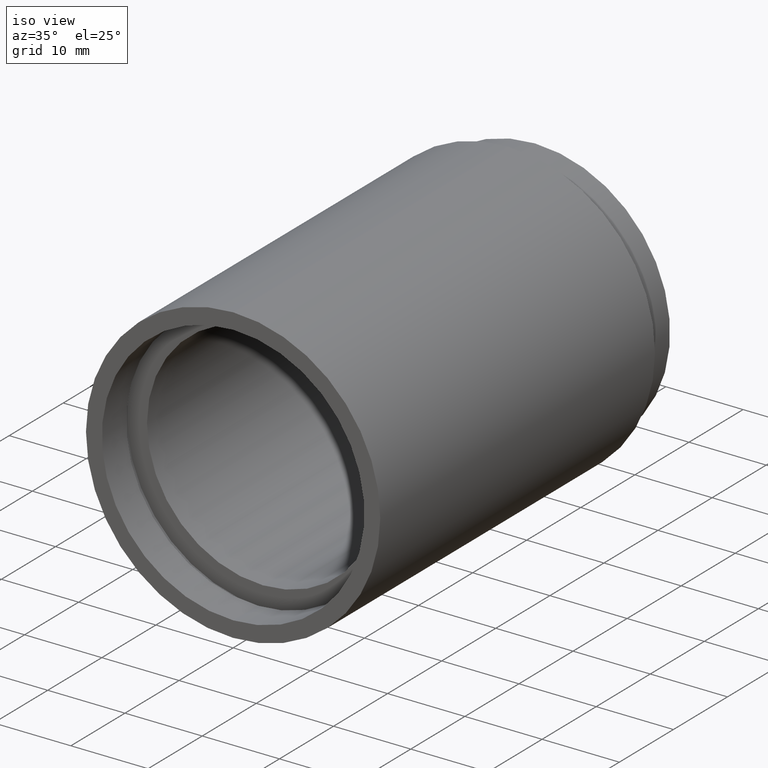
[diagram: clean part render]
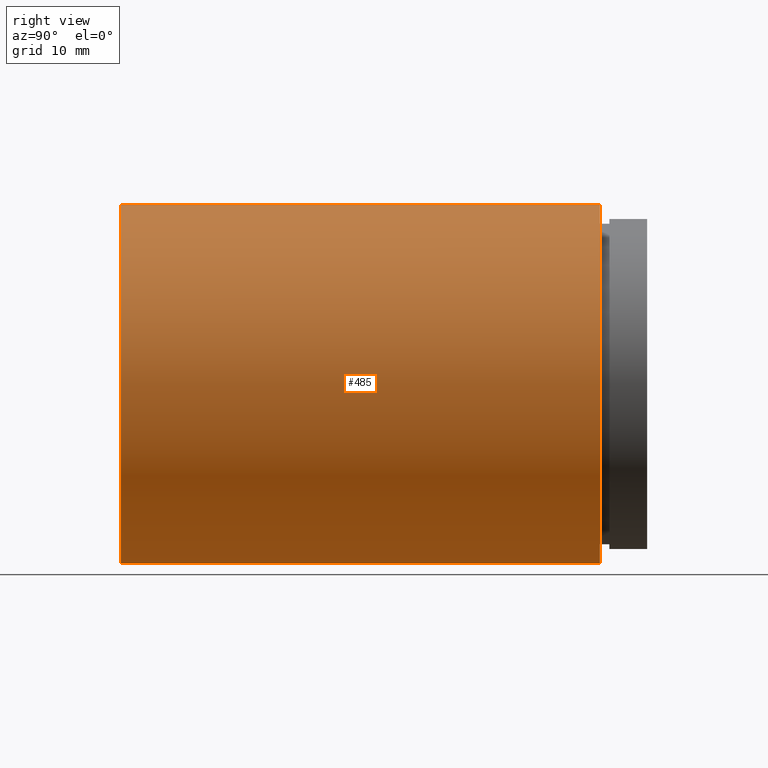
[diagram: tour spotlight — one face highlighted and labeled with its STEP entity id]
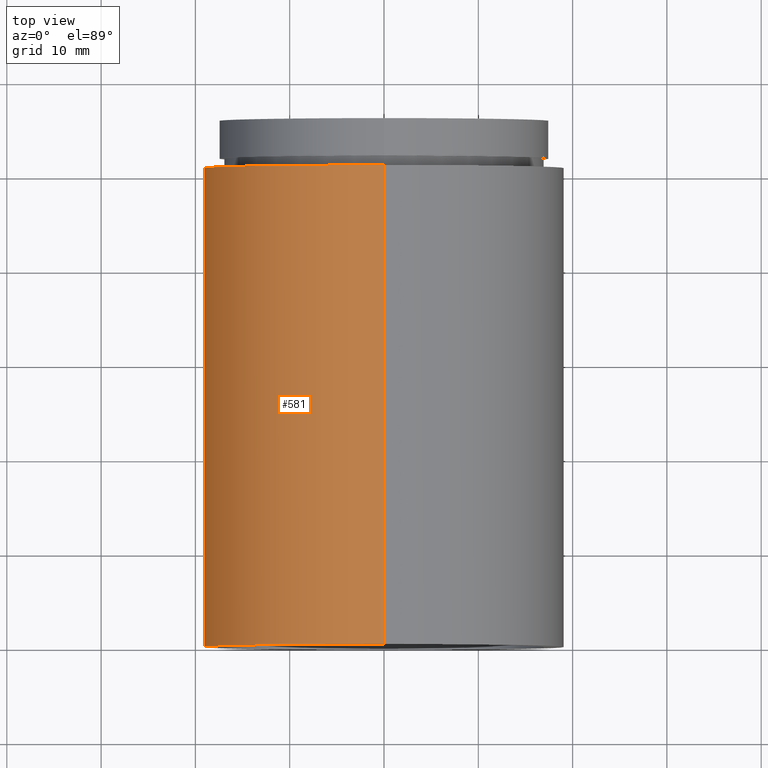
[diagram: tour spotlight — one face highlighted and labeled with its STEP entity id]
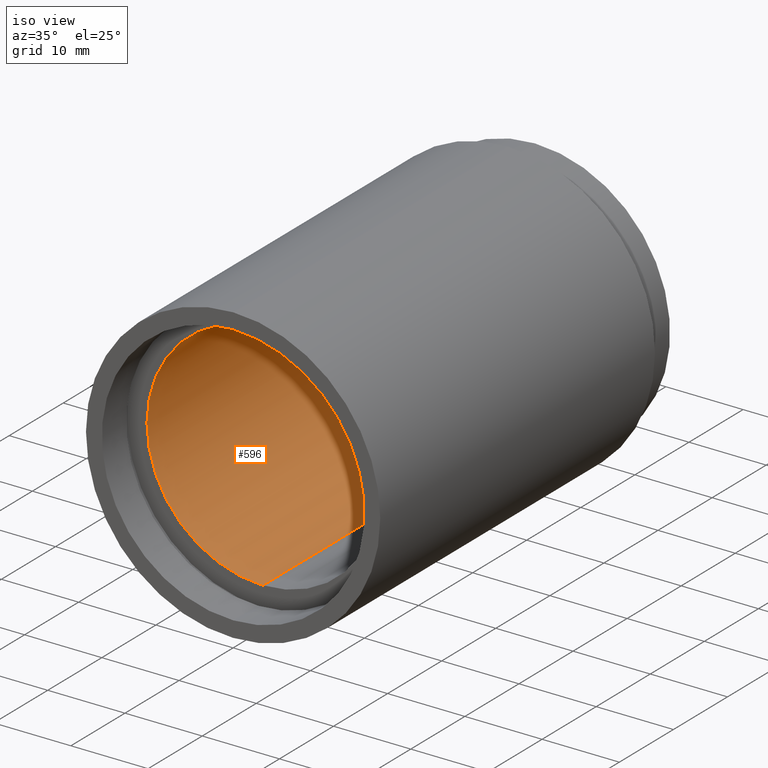
[diagram: tour spotlight — one face highlighted and labeled with its STEP entity id]
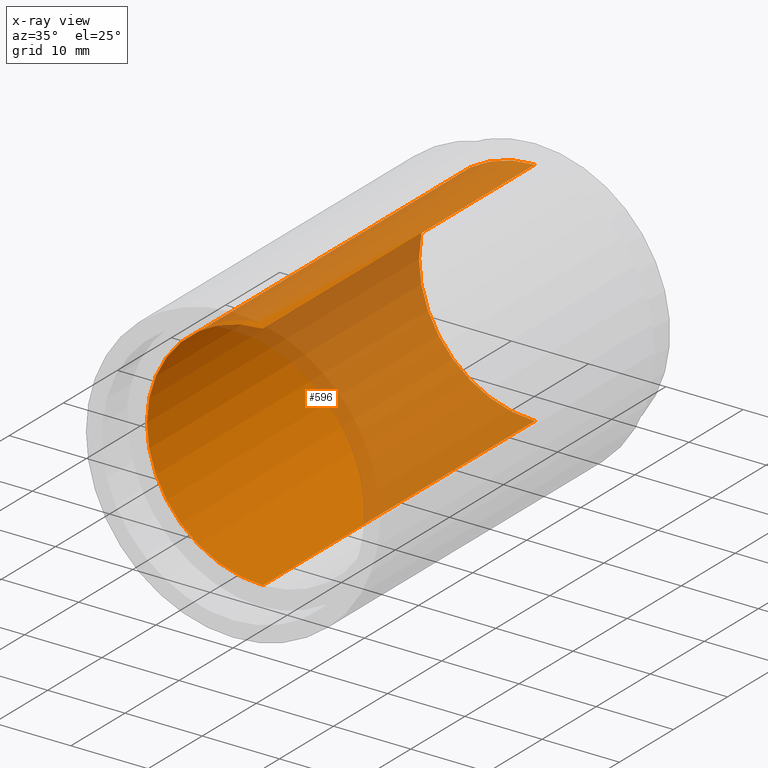
[diagram: x-ray of the same camera — body ghosted, this tour face saturated]
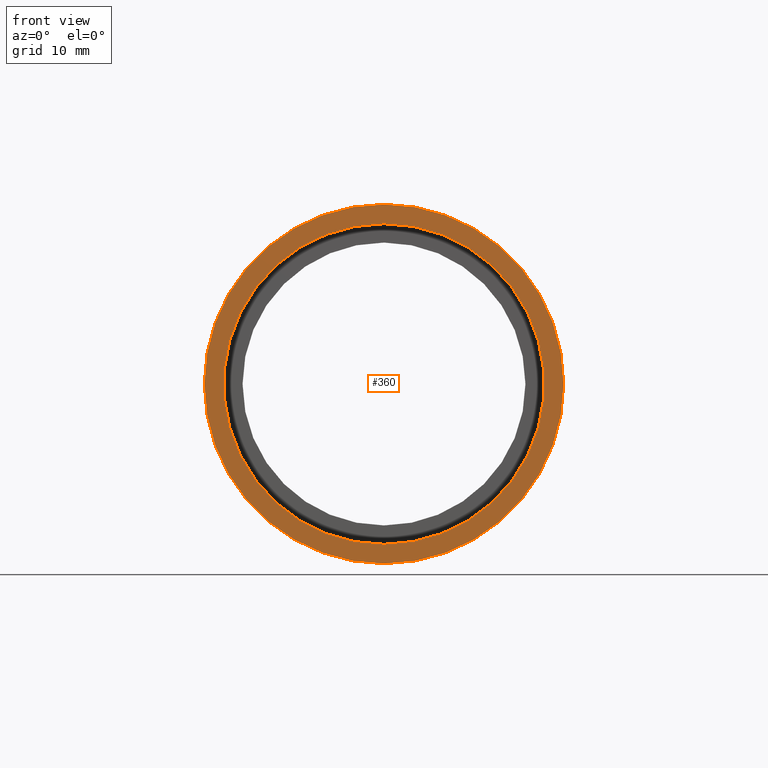
[diagram: tour spotlight — one face highlighted and labeled with its STEP entity id]
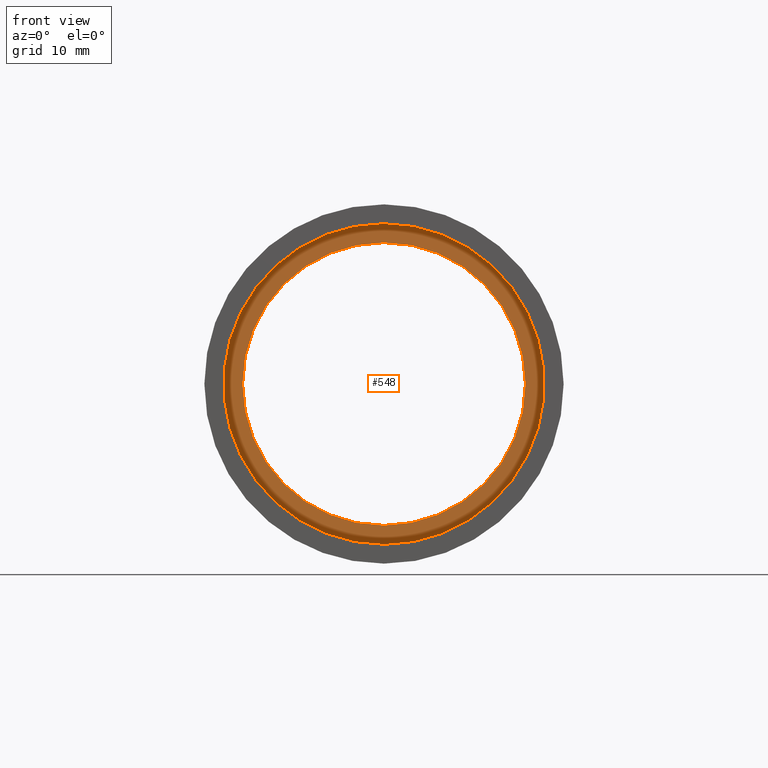
[diagram: tour spotlight — one face highlighted and labeled with its STEP entity id]
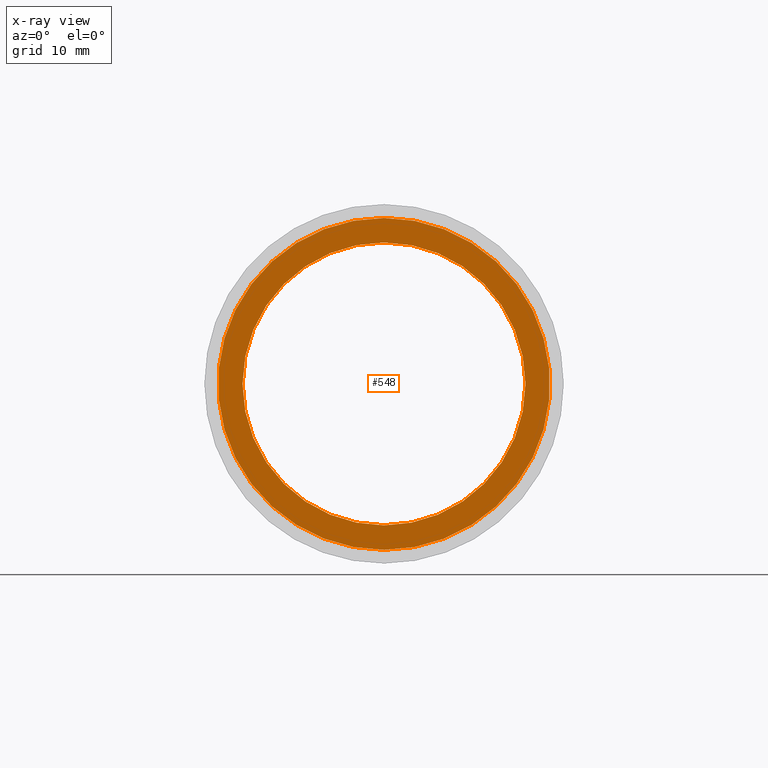
[diagram: x-ray of the same camera — body ghosted, this tour face saturated]
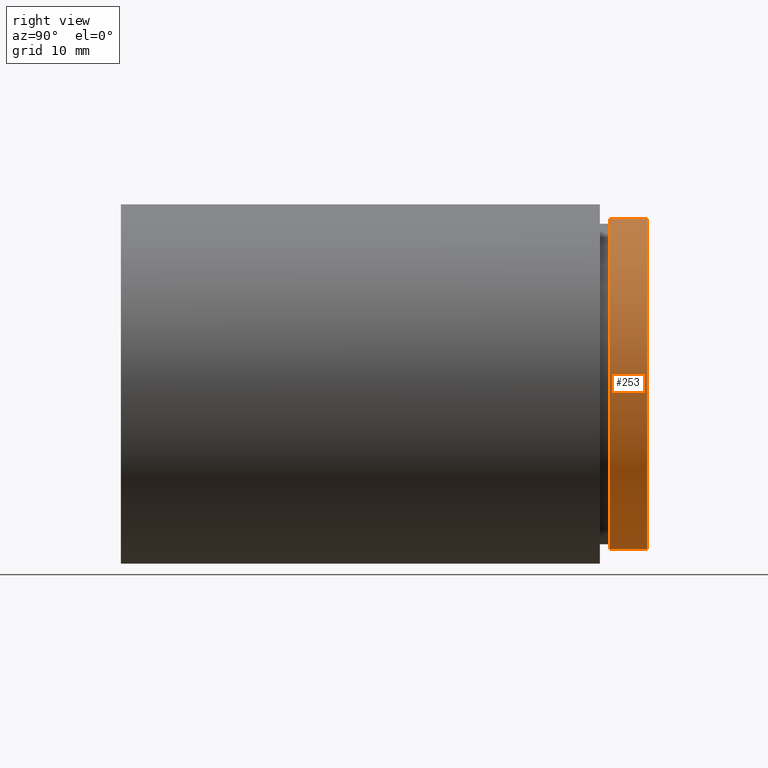
[diagram: tour spotlight — one face highlighted and labeled with its STEP entity id]
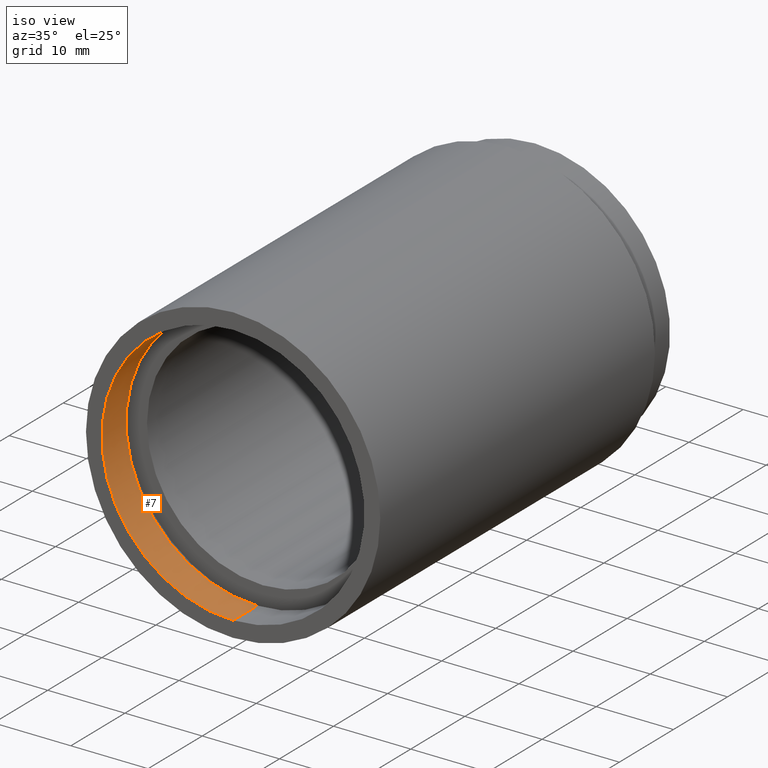
[diagram: tour spotlight — one face highlighted and labeled with its STEP entity id]
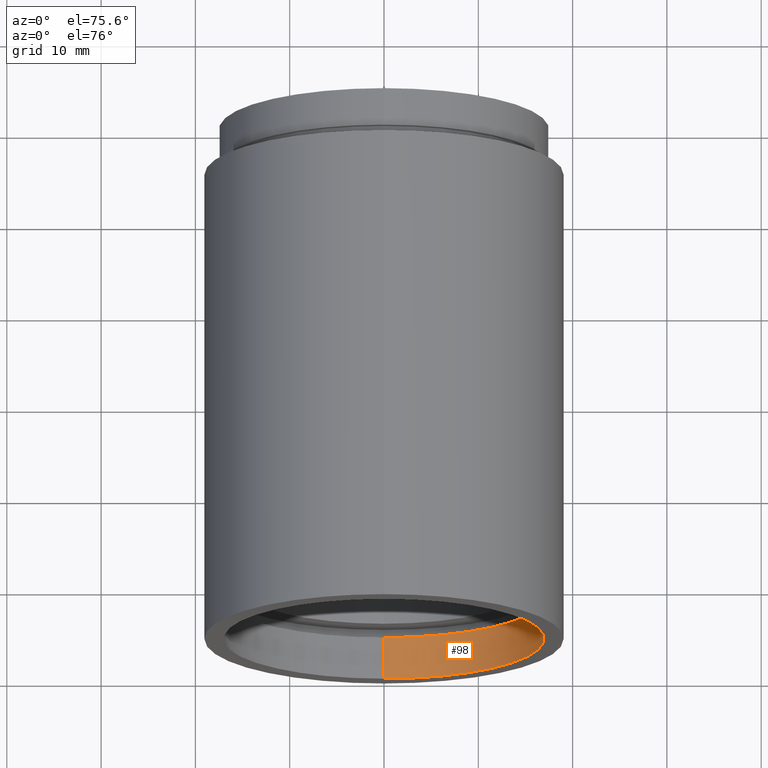
[diagram: tour spotlight — one face highlighted and labeled with its STEP entity id]
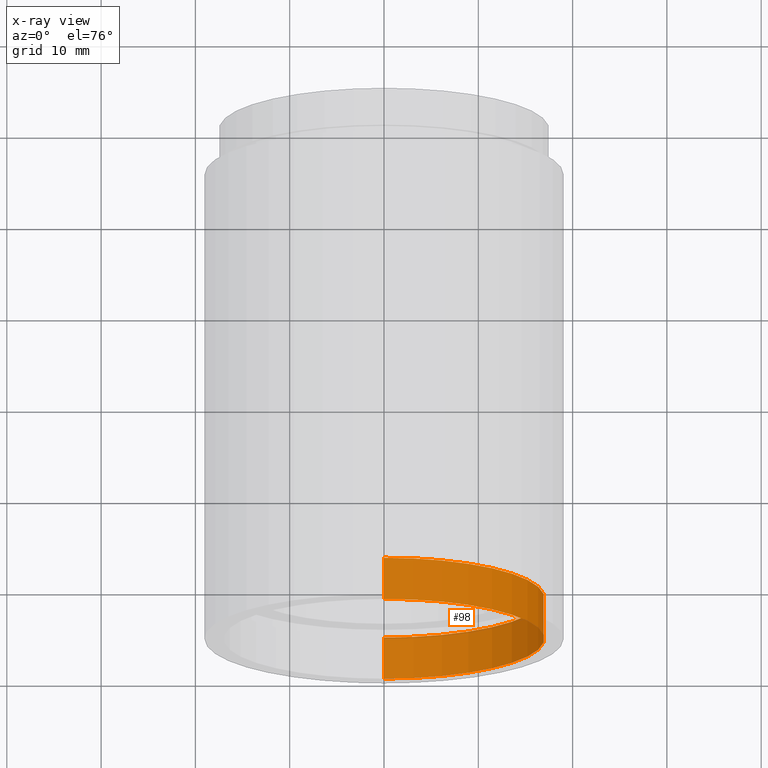
[diagram: x-ray of the same camera — body ghosted, this tour face saturated]
A machine part: a face-by-face anatomy tour. The part has 18 B-rep faces; the first image is the clean iso view, then the 8 largest visible faces are spotlighted one at a time (largest first), each with its STEP entity span.

Face 1 — right view, entity #485. In plain terms, the highlighted cylindrical surface (partial cylindrical patch) has radius 19.05 mm, axis along (-0, 1, -0).
Definition (entity closure, byte-faithful):
#34 = VERTEX_POINT ( 'NONE', #231 ) ;
#38 = CYLINDRICAL_SURFACE ( 'NONE', #260, 19.05000000000002200 ) ;
#39 = CIRCLE ( 'NONE', #413, 19.05000000000002200 ) ;
#50 = FACE_OUTER_BOUND ( 'NONE', #179, .T. ) ;
#66 = VERTEX_POINT ( 'NONE', #426 ) ;
#72 = EDGE_CURVE ( 'NONE', #34, #191, #39, .T. ) ;
#77 = DIRECTION ( 'NONE',  ( -0.0000000000000000000, 1.000000000000000000, -0.0000000000000000000 ) ) ;
#85 = LINE ( 'NONE', #549, #334 ) ;
#151 = DIRECTION ( 'NONE',  ( -0.0000000000000000000, 1.000000000000000000, -0.0000000000000000000 ) ) ;
#179 = EDGE_LOOP ( 'NONE', ( #284, #230, #452, #355 ) ) ;
#180 = AXIS2_PLACEMENT_3D ( 'NONE', #414, #369, #212 ) ;
#191 = VERTEX_POINT ( 'NONE', #593 ) ;
#212 = DIRECTION ( 'NONE',  ( 0.0000000000000000000, 0.0000000000000000000, 1.000000000000000000 ) ) ;
#230 = ORIENTED_EDGE ( 'NONE', *, *, #379, .T. ) ;
#231 = CARTESIAN_POINT ( 'NONE',  ( 0.0000000000000000000, 50.79999999999998300, 19.05000000000002200 ) ) ;
#232 = CARTESIAN_POINT ( 'NONE',  ( 0.0000000000000000000, -2.775557561562891400E-014, 19.05000000000002200 ) ) ;
#248 = DIRECTION ( 'NONE',  ( 0.0000000000000000000, 0.0000000000000000000, 1.000000000000000000 ) ) ;
#260 = AXIS2_PLACEMENT_3D ( 'NONE', #321, #77, #583 ) ;
#284 = ORIENTED_EDGE ( 'NONE', *, *, #450, .T. ) ;
#306 = EDGE_CURVE ( 'NONE', #553, #34, #85, .T. ) ;
#321 = CARTESIAN_POINT ( 'NONE',  ( 0.0000000000000000000, 161.3761669434274500, 0.0000000000000000000 ) ) ;
#334 = VECTOR ( 'NONE', #594, 1000.000000000000000 ) ;
#348 = CARTESIAN_POINT ( 'NONE',  ( 0.0000000000000000000, 50.79999999999998300, 0.0000000000000000000 ) ) ;
#355 = ORIENTED_EDGE ( 'NONE', *, *, #306, .F. ) ;
#369 = DIRECTION ( 'NONE',  ( -0.0000000000000000000, 1.000000000000000000, -0.0000000000000000000 ) ) ;
#379 = EDGE_CURVE ( 'NONE', #66, #191, #468, .T. ) ;
#411 = CARTESIAN_POINT ( 'NONE',  ( 2.332952152375710400E-015, 161.3761669434274500, -19.05000000000002200 ) ) ;
#413 = AXIS2_PLACEMENT_3D ( 'NONE', #348, #151, #248 ) ;
#414 = CARTESIAN_POINT ( 'NONE',  ( 0.0000000000000000000, -2.775557561562891400E-014, 0.0000000000000000000 ) ) ;
#426 = CARTESIAN_POINT ( 'NONE',  ( 2.332952152375710400E-015, -2.775557561562891400E-014, -19.05000000000002200 ) ) ;
#450 = EDGE_CURVE ( 'NONE', #553, #66, #611, .T. ) ;
#452 = ORIENTED_EDGE ( 'NONE', *, *, #72, .F. ) ;
#468 = LINE ( 'NONE', #411, #585 ) ;
#485 = ADVANCED_FACE ( 'NONE', ( #50 ), #38, .T. ) ;
#549 = CARTESIAN_POINT ( 'NONE',  ( 0.0000000000000000000, 161.3761669434274500, 19.05000000000002200 ) ) ;
#553 = VERTEX_POINT ( 'NONE', #232 ) ;
#558 = DIRECTION ( 'NONE',  ( -0.0000000000000000000, 1.000000000000000000, -0.0000000000000000000 ) ) ;
#583 = DIRECTION ( 'NONE',  ( 0.0000000000000000000, 0.0000000000000000000, 1.000000000000000000 ) ) ;
#585 = VECTOR ( 'NONE', #558, 1000.000000000000000 ) ;
#593 = CARTESIAN_POINT ( 'NONE',  ( 2.332952152375710400E-015, 50.79999999999998300, -19.05000000000002200 ) ) ;
#594 = DIRECTION ( 'NONE',  ( -0.0000000000000000000, 1.000000000000000000, -0.0000000000000000000 ) ) ;
#611 = CIRCLE ( 'NONE', #180, 19.05000000000002200 ) ;

Face 2 — top view, entity #581. In plain terms, the highlighted cylindrical surface (partial cylindrical patch) has radius 19.05 mm, axis along (-0, 1, -0).
Definition (entity closure, byte-faithful):
#15 = DIRECTION ( 'NONE',  ( 0.0000000000000000000, 0.0000000000000000000, 1.000000000000000000 ) ) ;
#34 = VERTEX_POINT ( 'NONE', #231 ) ;
#60 = ORIENTED_EDGE ( 'NONE', *, *, #379, .F. ) ;
#66 = VERTEX_POINT ( 'NONE', #426 ) ;
#85 = LINE ( 'NONE', #549, #334 ) ;
#94 = CIRCLE ( 'NONE', #320, 19.05000000000002200 ) ;
#106 = DIRECTION ( 'NONE',  ( -0.0000000000000000000, 1.000000000000000000, -0.0000000000000000000 ) ) ;
#117 = AXIS2_PLACEMENT_3D ( 'NONE', #587, #106, #15 ) ;
#148 = EDGE_CURVE ( 'NONE', #191, #34, #523, .T. ) ;
#175 = FACE_OUTER_BOUND ( 'NONE', #514, .T. ) ;
#191 = VERTEX_POINT ( 'NONE', #593 ) ;
#231 = CARTESIAN_POINT ( 'NONE',  ( 0.0000000000000000000, 50.79999999999998300, 19.05000000000002200 ) ) ;
#232 = CARTESIAN_POINT ( 'NONE',  ( 0.0000000000000000000, -2.775557561562891400E-014, 19.05000000000002200 ) ) ;
#236 = DIRECTION ( 'NONE',  ( 0.0000000000000000000, 0.0000000000000000000, 1.000000000000000000 ) ) ;
#240 = ORIENTED_EDGE ( 'NONE', *, *, #148, .F. ) ;
#265 = DIRECTION ( 'NONE',  ( 0.0000000000000000000, 0.0000000000000000000, 1.000000000000000000 ) ) ;
#288 = CARTESIAN_POINT ( 'NONE',  ( 0.0000000000000000000, 161.3761669434274500, 0.0000000000000000000 ) ) ;
#297 = DIRECTION ( 'NONE',  ( -0.0000000000000000000, 1.000000000000000000, -0.0000000000000000000 ) ) ;
#306 = EDGE_CURVE ( 'NONE', #553, #34, #85, .T. ) ;
#320 = AXIS2_PLACEMENT_3D ( 'NONE', #608, #564, #265 ) ;
#334 = VECTOR ( 'NONE', #594, 1000.000000000000000 ) ;
#349 = EDGE_CURVE ( 'NONE', #66, #553, #94, .T. ) ;
#378 = CYLINDRICAL_SURFACE ( 'NONE', #417, 19.05000000000002200 ) ;
#379 = EDGE_CURVE ( 'NONE', #66, #191, #468, .T. ) ;
#390 = ORIENTED_EDGE ( 'NONE', *, *, #306, .T. ) ;
#411 = CARTESIAN_POINT ( 'NONE',  ( 2.332952152375710400E-015, 161.3761669434274500, -19.05000000000002200 ) ) ;
#417 = AXIS2_PLACEMENT_3D ( 'NONE', #288, #297, #236 ) ;
#426 = CARTESIAN_POINT ( 'NONE',  ( 2.332952152375710400E-015, -2.775557561562891400E-014, -19.05000000000002200 ) ) ;
#468 = LINE ( 'NONE', #411, #585 ) ;
#514 = EDGE_LOOP ( 'NONE', ( #60, #563, #390, #240 ) ) ;
#523 = CIRCLE ( 'NONE', #117, 19.05000000000002200 ) ;
#549 = CARTESIAN_POINT ( 'NONE',  ( 0.0000000000000000000, 161.3761669434274500, 19.05000000000002200 ) ) ;
#553 = VERTEX_POINT ( 'NONE', #232 ) ;
#558 = DIRECTION ( 'NONE',  ( -0.0000000000000000000, 1.000000000000000000, -0.0000000000000000000 ) ) ;
#563 = ORIENTED_EDGE ( 'NONE', *, *, #349, .T. ) ;
#564 = DIRECTION ( 'NONE',  ( -0.0000000000000000000, 1.000000000000000000, -0.0000000000000000000 ) ) ;
#581 = ADVANCED_FACE ( 'NONE', ( #175 ), #378, .T. ) ;
#585 = VECTOR ( 'NONE', #558, 1000.000000000000000 ) ;
#587 = CARTESIAN_POINT ( 'NONE',  ( 0.0000000000000000000, 50.79999999999998300, 0.0000000000000000000 ) ) ;
#593 = CARTESIAN_POINT ( 'NONE',  ( 2.332952152375710400E-015, 50.79999999999998300, -19.05000000000002200 ) ) ;
#594 = DIRECTION ( 'NONE',  ( -0.0000000000000000000, 1.000000000000000000, -0.0000000000000000000 ) ) ;
#608 = CARTESIAN_POINT ( 'NONE',  ( 0.0000000000000000000, -2.775557561562891400E-014, 0.0000000000000000000 ) ) ;

Face 3 — iso view, entity #596. An x-ray twin of the same camera follows (body ghosted, this face saturated) — the face is partly hidden behind the body. In plain terms, the highlighted cylindrical surface (partial cylindrical patch) has radius 15 mm, axis along (-0, 1, -0).
Definition (entity closure, byte-faithful):
#31 = CYLINDRICAL_SURFACE ( 'NONE', #461, 15.00000000000001600 ) ;
#41 = VERTEX_POINT ( 'NONE', #339 ) ;
#42 = EDGE_CURVE ( 'NONE', #462, #335, #537, .T. ) ;
#52 = DIRECTION ( 'NONE',  ( -0.0000000000000000000, 1.000000000000000000, -0.0000000000000000000 ) ) ;
#73 = CARTESIAN_POINT ( 'NONE',  ( 1.836970198721032000E-015, 5.499999999999976900, -15.00000000000001600 ) ) ;
#83 = AXIS2_PLACEMENT_3D ( 'NONE', #530, #392, #477 ) ;
#91 = CARTESIAN_POINT ( 'NONE',  ( 0.0000000000000000000, 5.499999999999976900, 0.0000000000000000000 ) ) ;
#134 = EDGE_CURVE ( 'NONE', #141, #41, #577, .T. ) ;
#141 = VERTEX_POINT ( 'NONE', #190 ) ;
#173 = AXIS2_PLACEMENT_3D ( 'NONE', #91, #52, #575 ) ;
#190 = CARTESIAN_POINT ( 'NONE',  ( 0.0000000000000000000, 5.499999999999976900, 15.00000000000001600 ) ) ;
#222 = CIRCLE ( 'NONE', #173, 15.00000000000001600 ) ;
#239 = ORIENTED_EDGE ( 'NONE', *, *, #134, .F. ) ;
#249 = DIRECTION ( 'NONE',  ( 0.0000000000000000000, 0.0000000000000000000, 1.000000000000000000 ) ) ;
#267 = FACE_OUTER_BOUND ( 'NONE', #304, .T. ) ;
#279 = ORIENTED_EDGE ( 'NONE', *, *, #550, .F. ) ;
#304 = EDGE_LOOP ( 'NONE', ( #279, #489, #400, #239 ) ) ;
#335 = VERTEX_POINT ( 'NONE', #498 ) ;
#339 = CARTESIAN_POINT ( 'NONE',  ( 0.0000000000000000000, 55.79999999999999000, 15.00000000000001800 ) ) ;
#383 = VECTOR ( 'NONE', #481, 1000.000000000000000 ) ;
#392 = DIRECTION ( 'NONE',  ( -0.0000000000000000000, 1.000000000000000000, -0.0000000000000000000 ) ) ;
#400 = ORIENTED_EDGE ( 'NONE', *, *, #519, .T. ) ;
#432 = DIRECTION ( 'NONE',  ( -0.0000000000000000000, 1.000000000000000000, -0.0000000000000000000 ) ) ;
#443 = CARTESIAN_POINT ( 'NONE',  ( 0.0000000000000000000, 161.3761669434274500, 15.00000000000001600 ) ) ;
#461 = AXIS2_PLACEMENT_3D ( 'NONE', #471, #432, #249 ) ;
#462 = VERTEX_POINT ( 'NONE', #73 ) ;
#470 = DIRECTION ( 'NONE',  ( -0.0000000000000000000, 1.000000000000000000, -0.0000000000000000000 ) ) ;
#471 = CARTESIAN_POINT ( 'NONE',  ( 0.0000000000000000000, 161.3761669434274500, 0.0000000000000000000 ) ) ;
#474 = CARTESIAN_POINT ( 'NONE',  ( 1.836970198721032000E-015, 161.3761669434274500, -15.00000000000001600 ) ) ;
#477 = DIRECTION ( 'NONE',  ( 0.0000000000000000000, 0.0000000000000000000, 1.000000000000000000 ) ) ;
#481 = DIRECTION ( 'NONE',  ( -0.0000000000000000000, 1.000000000000000000, -0.0000000000000000000 ) ) ;
#489 = ORIENTED_EDGE ( 'NONE', *, *, #42, .T. ) ;
#495 = VECTOR ( 'NONE', #470, 1000.000000000000000 ) ;
#498 = CARTESIAN_POINT ( 'NONE',  ( 1.836970198721032300E-015, 55.79999999999999000, -15.00000000000002000 ) ) ;
#519 = EDGE_CURVE ( 'NONE', #335, #41, #551, .T. ) ;
#530 = CARTESIAN_POINT ( 'NONE',  ( 0.0000000000000000000, 55.79999999999999000, 0.0000000000000000000 ) ) ;
#537 = LINE ( 'NONE', #474, #495 ) ;
#550 = EDGE_CURVE ( 'NONE', #462, #141, #222, .T. ) ;
#551 = CIRCLE ( 'NONE', #83, 15.00000000000001800 ) ;
#575 = DIRECTION ( 'NONE',  ( 0.0000000000000000000, 0.0000000000000000000, 1.000000000000000000 ) ) ;
#577 = LINE ( 'NONE', #443, #383 ) ;
#596 = ADVANCED_FACE ( 'NONE', ( #267 ), #31, .F. ) ;

Face 4 — front view, entity #360. In plain terms, the highlighted planar face has unit normal (-0, 1, 0).
Definition (entity closure, byte-faithful):
#66 = VERTEX_POINT ( 'NONE', #426 ) ;
#67 = AXIS2_PLACEMENT_3D ( 'NONE', #258, #206, #599 ) ;
#94 = CIRCLE ( 'NONE', #320, 19.05000000000002200 ) ;
#111 = DIRECTION ( 'NONE',  ( -0.0000000000000000000, 1.000000000000000000, -0.0000000000000000000 ) ) ;
#116 = FACE_BOUND ( 'NONE', #174, .T. ) ;
#121 = EDGE_CURVE ( 'NONE', #132, #219, #365, .T. ) ;
#132 = VERTEX_POINT ( 'NONE', #350 ) ;
#138 = ORIENTED_EDGE ( 'NONE', *, *, #121, .T. ) ;
#150 = AXIS2_PLACEMENT_3D ( 'NONE', #328, #460, #271 ) ;
#157 = CARTESIAN_POINT ( 'NONE',  ( 0.0000000000000000000, -2.775557561562891400E-014, 0.0000000000000000000 ) ) ;
#174 = EDGE_LOOP ( 'NONE', ( #138, #536 ) ) ;
#177 = CIRCLE ( 'NONE', #67, 17.00000000000002100 ) ;
#180 = AXIS2_PLACEMENT_3D ( 'NONE', #414, #369, #212 ) ;
#206 = DIRECTION ( 'NONE',  ( -0.0000000000000000000, 1.000000000000000000, -0.0000000000000000000 ) ) ;
#212 = DIRECTION ( 'NONE',  ( 0.0000000000000000000, 0.0000000000000000000, 1.000000000000000000 ) ) ;
#219 = VERTEX_POINT ( 'NONE', #603 ) ;
#232 = CARTESIAN_POINT ( 'NONE',  ( 0.0000000000000000000, -2.775557561562891400E-014, 19.05000000000002200 ) ) ;
#258 = CARTESIAN_POINT ( 'NONE',  ( 0.0000000000000000000, -2.775557561562891400E-014, 0.0000000000000000000 ) ) ;
#262 = AXIS2_PLACEMENT_3D ( 'NONE', #157, #111, #434 ) ;
#265 = DIRECTION ( 'NONE',  ( 0.0000000000000000000, 0.0000000000000000000, 1.000000000000000000 ) ) ;
#271 = DIRECTION ( 'NONE',  ( 0.0000000000000000000, 0.0000000000000000000, 1.000000000000000000 ) ) ;
#316 = EDGE_CURVE ( 'NONE', #219, #132, #177, .T. ) ;
#320 = AXIS2_PLACEMENT_3D ( 'NONE', #608, #564, #265 ) ;
#328 = CARTESIAN_POINT ( 'NONE',  ( 17.00000000000002100, -1.493598162583808000E-014, 0.0000000000000000000 ) ) ;
#349 = EDGE_CURVE ( 'NONE', #66, #553, #94, .T. ) ;
#350 = CARTESIAN_POINT ( 'NONE',  ( 0.0000000000000000000, -2.775557561562891400E-014, 17.00000000000002100 ) ) ;
#360 = ADVANCED_FACE ( 'NONE', ( #429, #116 ), #612, .F. ) ;
#365 = CIRCLE ( 'NONE', #262, 17.00000000000002100 ) ;
#369 = DIRECTION ( 'NONE',  ( -0.0000000000000000000, 1.000000000000000000, -0.0000000000000000000 ) ) ;
#376 = ORIENTED_EDGE ( 'NONE', *, *, #349, .F. ) ;
#414 = CARTESIAN_POINT ( 'NONE',  ( 0.0000000000000000000, -2.775557561562891400E-014, 0.0000000000000000000 ) ) ;
#426 = CARTESIAN_POINT ( 'NONE',  ( 2.332952152375710400E-015, -2.775557561562891400E-014, -19.05000000000002200 ) ) ;
#429 = FACE_OUTER_BOUND ( 'NONE', #518, .T. ) ;
#434 = DIRECTION ( 'NONE',  ( 0.0000000000000000000, 0.0000000000000000000, 1.000000000000000000 ) ) ;
#450 = EDGE_CURVE ( 'NONE', #553, #66, #611, .T. ) ;
#460 = DIRECTION ( 'NONE',  ( -0.0000000000000000000, 1.000000000000000000, 0.0000000000000000000 ) ) ;
#518 = EDGE_LOOP ( 'NONE', ( #622, #376 ) ) ;
#536 = ORIENTED_EDGE ( 'NONE', *, *, #316, .T. ) ;
#553 = VERTEX_POINT ( 'NONE', #232 ) ;
#564 = DIRECTION ( 'NONE',  ( -0.0000000000000000000, 1.000000000000000000, -0.0000000000000000000 ) ) ;
#599 = DIRECTION ( 'NONE',  ( 0.0000000000000000000, 0.0000000000000000000, 1.000000000000000000 ) ) ;
#603 = CARTESIAN_POINT ( 'NONE',  ( 2.081899558550503000E-015, -2.775557561562891400E-014, -17.00000000000002100 ) ) ;
#608 = CARTESIAN_POINT ( 'NONE',  ( 0.0000000000000000000, -2.775557561562891400E-014, 0.0000000000000000000 ) ) ;
#611 = CIRCLE ( 'NONE', #180, 19.05000000000002200 ) ;
#612 = PLANE ( 'NONE',  #150 ) ;
#622 = ORIENTED_EDGE ( 'NONE', *, *, #450, .F. ) ;

Face 5 — front view, entity #548. An x-ray twin of the same camera follows (body ghosted, this face saturated) — the face is partly hidden behind the body. In plain terms, the highlighted planar face has unit normal (-0, 1, 0).
Definition (entity closure, byte-faithful):
#6 = EDGE_LOOP ( 'NONE', ( #570, #299 ) ) ;
#29 = VERTEX_POINT ( 'NONE', #387 ) ;
#32 = EDGE_CURVE ( 'NONE', #141, #462, #463, .T. ) ;
#45 = EDGE_LOOP ( 'NONE', ( #598, #133 ) ) ;
#52 = DIRECTION ( 'NONE',  ( -0.0000000000000000000, 1.000000000000000000, -0.0000000000000000000 ) ) ;
#73 = CARTESIAN_POINT ( 'NONE',  ( 1.836970198721032000E-015, 5.499999999999976900, -15.00000000000001600 ) ) ;
#90 = CARTESIAN_POINT ( 'NONE',  ( 0.0000000000000000000, 5.499999999999976900, 0.0000000000000000000 ) ) ;
#91 = CARTESIAN_POINT ( 'NONE',  ( 0.0000000000000000000, 5.499999999999976900, 0.0000000000000000000 ) ) ;
#93 = DIRECTION ( 'NONE',  ( -0.0000000000000000000, 1.000000000000000000, -0.0000000000000000000 ) ) ;
#128 = DIRECTION ( 'NONE',  ( 0.0000000000000000000, 0.0000000000000000000, 1.000000000000000000 ) ) ;
#133 = ORIENTED_EDGE ( 'NONE', *, *, #550, .T. ) ;
#140 = DIRECTION ( 'NONE',  ( -0.0000000000000000000, 1.000000000000000000, 0.0000000000000000000 ) ) ;
#141 = VERTEX_POINT ( 'NONE', #190 ) ;
#149 = FACE_OUTER_BOUND ( 'NONE', #6, .T. ) ;
#173 = AXIS2_PLACEMENT_3D ( 'NONE', #91, #52, #575 ) ;
#176 = CIRCLE ( 'NONE', #385, 17.60000000000002300 ) ;
#184 = CARTESIAN_POINT ( 'NONE',  ( 0.0000000000000000000, 5.499999999999976900, 0.0000000000000000000 ) ) ;
#190 = CARTESIAN_POINT ( 'NONE',  ( 0.0000000000000000000, 5.499999999999976900, 15.00000000000001600 ) ) ;
#204 = AXIS2_PLACEMENT_3D ( 'NONE', #184, #93, #428 ) ;
#216 = DIRECTION ( 'NONE',  ( -0.0000000000000000000, 1.000000000000000000, -0.0000000000000000000 ) ) ;
#222 = CIRCLE ( 'NONE', #173, 15.00000000000001600 ) ;
#227 = AXIS2_PLACEMENT_3D ( 'NONE', #422, #140, #579 ) ;
#259 = CARTESIAN_POINT ( 'NONE',  ( 0.0000000000000000000, 5.499999999999976900, 17.60000000000002300 ) ) ;
#293 = DIRECTION ( 'NONE',  ( -0.0000000000000000000, 1.000000000000000000, -0.0000000000000000000 ) ) ;
#298 = VERTEX_POINT ( 'NONE', #259 ) ;
#299 = ORIENTED_EDGE ( 'NONE', *, *, #437, .F. ) ;
#333 = AXIS2_PLACEMENT_3D ( 'NONE', #90, #293, #424 ) ;
#377 = CARTESIAN_POINT ( 'NONE',  ( 0.0000000000000000000, 5.499999999999976900, 0.0000000000000000000 ) ) ;
#385 = AXIS2_PLACEMENT_3D ( 'NONE', #377, #216, #128 ) ;
#387 = CARTESIAN_POINT ( 'NONE',  ( 2.155378366499344400E-015, 5.499999999999976900, -17.60000000000002300 ) ) ;
#415 = CIRCLE ( 'NONE', #204, 17.60000000000002300 ) ;
#422 = CARTESIAN_POINT ( 'NONE',  ( 17.60000000000002300, 5.499999999999983100, 0.0000000000000000000 ) ) ;
#424 = DIRECTION ( 'NONE',  ( 0.0000000000000000000, 0.0000000000000000000, 1.000000000000000000 ) ) ;
#428 = DIRECTION ( 'NONE',  ( 0.0000000000000000000, 0.0000000000000000000, 1.000000000000000000 ) ) ;
#437 = EDGE_CURVE ( 'NONE', #29, #298, #176, .T. ) ;
#440 = FACE_BOUND ( 'NONE', #45, .T. ) ;
#462 = VERTEX_POINT ( 'NONE', #73 ) ;
#463 = CIRCLE ( 'NONE', #333, 15.00000000000001600 ) ;
#548 = ADVANCED_FACE ( 'NONE', ( #149, #440 ), #572, .F. ) ;
#550 = EDGE_CURVE ( 'NONE', #462, #141, #222, .T. ) ;
#570 = ORIENTED_EDGE ( 'NONE', *, *, #578, .F. ) ;
#572 = PLANE ( 'NONE',  #227 ) ;
#575 = DIRECTION ( 'NONE',  ( 0.0000000000000000000, 0.0000000000000000000, 1.000000000000000000 ) ) ;
#578 = EDGE_CURVE ( 'NONE', #298, #29, #415, .T. ) ;
#579 = DIRECTION ( 'NONE',  ( 0.0000000000000000000, 0.0000000000000000000, 1.000000000000000000 ) ) ;
#598 = ORIENTED_EDGE ( 'NONE', *, *, #32, .T. ) ;

Face 6 — right view, entity #253. In plain terms, the highlighted cylindrical surface (partial cylindrical patch) has radius 17.5 mm, axis along (-0, 1, -0).
Definition (entity closure, byte-faithful):
#2 = CARTESIAN_POINT ( 'NONE',  ( 0.0000000000000000000, 51.79999999999998300, 17.50000000000002100 ) ) ;
#14 = EDGE_CURVE ( 'NONE', #40, #473, #600, .T. ) ;
#21 = ORIENTED_EDGE ( 'NONE', *, *, #36, .T. ) ;
#36 = EDGE_CURVE ( 'NONE', #473, #431, #343, .T. ) ;
#40 = VERTEX_POINT ( 'NONE', #2 ) ;
#44 = DIRECTION ( 'NONE',  ( -0.0000000000000000000, 1.000000000000000000, -0.0000000000000000000 ) ) ;
#46 = DIRECTION ( 'NONE',  ( -0.0000000000000000000, 1.000000000000000000, -0.0000000000000000000 ) ) ;
#51 = EDGE_CURVE ( 'NONE', #40, #554, #65, .T. ) ;
#65 = LINE ( 'NONE', #142, #410 ) ;
#100 = DIRECTION ( 'NONE',  ( 0.0000000000000000000, 0.0000000000000000000, 1.000000000000000000 ) ) ;
#136 = ORIENTED_EDGE ( 'NONE', *, *, #502, .F. ) ;
#142 = CARTESIAN_POINT ( 'NONE',  ( 0.0000000000000000000, 161.3761669434274500, 17.50000000000002100 ) ) ;
#144 = CARTESIAN_POINT ( 'NONE',  ( 2.143131898507870600E-015, 161.3761669434274500, -17.50000000000002100 ) ) ;
#172 = CARTESIAN_POINT ( 'NONE',  ( 2.143131898507870600E-015, 55.79999999999999000, -17.50000000000002100 ) ) ;
#205 = DIRECTION ( 'NONE',  ( -0.0000000000000000000, 1.000000000000000000, -0.0000000000000000000 ) ) ;
#208 = VECTOR ( 'NONE', #524, 1000.000000000000000 ) ;
#241 = CARTESIAN_POINT ( 'NONE',  ( 0.0000000000000000000, 55.79999999999999000, 17.50000000000002100 ) ) ;
#253 = ADVANCED_FACE ( 'NONE', ( #458 ), #482, .T. ) ;
#266 = AXIS2_PLACEMENT_3D ( 'NONE', #521, #46, #100 ) ;
#273 = CARTESIAN_POINT ( 'NONE',  ( 2.143131898507870600E-015, 51.79999999999998300, -17.50000000000002100 ) ) ;
#310 = EDGE_LOOP ( 'NONE', ( #384, #21, #136, #503 ) ) ;
#343 = LINE ( 'NONE', #144, #208 ) ;
#380 = CIRCLE ( 'NONE', #455, 17.50000000000002100 ) ;
#384 = ORIENTED_EDGE ( 'NONE', *, *, #14, .T. ) ;
#386 = CARTESIAN_POINT ( 'NONE',  ( 0.0000000000000000000, 55.79999999999999000, 0.0000000000000000000 ) ) ;
#393 = DIRECTION ( 'NONE',  ( 0.0000000000000000000, 0.0000000000000000000, 1.000000000000000000 ) ) ;
#406 = CARTESIAN_POINT ( 'NONE',  ( 0.0000000000000000000, 161.3761669434274500, 0.0000000000000000000 ) ) ;
#410 = VECTOR ( 'NONE', #529, 1000.000000000000000 ) ;
#431 = VERTEX_POINT ( 'NONE', #172 ) ;
#449 = DIRECTION ( 'NONE',  ( 0.0000000000000000000, 0.0000000000000000000, 1.000000000000000000 ) ) ;
#455 = AXIS2_PLACEMENT_3D ( 'NONE', #386, #44, #393 ) ;
#458 = FACE_OUTER_BOUND ( 'NONE', #310, .T. ) ;
#473 = VERTEX_POINT ( 'NONE', #273 ) ;
#482 = CYLINDRICAL_SURFACE ( 'NONE', #557, 17.50000000000002100 ) ;
#502 = EDGE_CURVE ( 'NONE', #554, #431, #380, .T. ) ;
#503 = ORIENTED_EDGE ( 'NONE', *, *, #51, .F. ) ;
#521 = CARTESIAN_POINT ( 'NONE',  ( 0.0000000000000000000, 51.79999999999998300, 0.0000000000000000000 ) ) ;
#524 = DIRECTION ( 'NONE',  ( -0.0000000000000000000, 1.000000000000000000, -0.0000000000000000000 ) ) ;
#529 = DIRECTION ( 'NONE',  ( -0.0000000000000000000, 1.000000000000000000, -0.0000000000000000000 ) ) ;
#554 = VERTEX_POINT ( 'NONE', #241 ) ;
#557 = AXIS2_PLACEMENT_3D ( 'NONE', #406, #205, #449 ) ;
#600 = CIRCLE ( 'NONE', #266, 17.50000000000002100 ) ;

Face 7 — iso view, entity #7. In plain terms, the highlighted cylindrical surface (partial cylindrical patch) has radius 17 mm, axis along (-0, 1, -0).
Definition (entity closure, byte-faithful):
#7 = ADVANCED_FACE ( 'NONE', ( #613 ), #170, .F. ) ;
#24 = EDGE_CURVE ( 'NONE', #219, #433, #35, .T. ) ;
#25 = CARTESIAN_POINT ( 'NONE',  ( 0.0000000000000000000, 4.499999999999976000, 17.00000000000002500 ) ) ;
#35 = LINE ( 'NONE', #336, #547 ) ;
#43 = DIRECTION ( 'NONE',  ( -0.0000000000000000000, 1.000000000000000000, -0.0000000000000000000 ) ) ;
#67 = AXIS2_PLACEMENT_3D ( 'NONE', #258, #206, #599 ) ;
#82 = EDGE_CURVE ( 'NONE', #433, #215, #152, .T. ) ;
#89 = AXIS2_PLACEMENT_3D ( 'NONE', #395, #436, #480 ) ;
#118 = EDGE_LOOP ( 'NONE', ( #250, #526, #323, #290 ) ) ;
#132 = VERTEX_POINT ( 'NONE', #350 ) ;
#137 = CARTESIAN_POINT ( 'NONE',  ( 0.0000000000000000000, 161.3761669434274500, 0.0000000000000000000 ) ) ;
#152 = CIRCLE ( 'NONE', #89, 17.00000000000002500 ) ;
#170 = CYLINDRICAL_SURFACE ( 'NONE', #508, 17.00000000000002100 ) ;
#177 = CIRCLE ( 'NONE', #67, 17.00000000000002100 ) ;
#181 = DIRECTION ( 'NONE',  ( -0.0000000000000000000, 1.000000000000000000, -0.0000000000000000000 ) ) ;
#187 = EDGE_CURVE ( 'NONE', #132, #215, #404, .T. ) ;
#206 = DIRECTION ( 'NONE',  ( -0.0000000000000000000, 1.000000000000000000, -0.0000000000000000000 ) ) ;
#215 = VERTEX_POINT ( 'NONE', #25 ) ;
#219 = VERTEX_POINT ( 'NONE', #603 ) ;
#250 = ORIENTED_EDGE ( 'NONE', *, *, #316, .F. ) ;
#258 = CARTESIAN_POINT ( 'NONE',  ( 0.0000000000000000000, -2.775557561562891400E-014, 0.0000000000000000000 ) ) ;
#290 = ORIENTED_EDGE ( 'NONE', *, *, #187, .F. ) ;
#316 = EDGE_CURVE ( 'NONE', #219, #132, #177, .T. ) ;
#317 = DIRECTION ( 'NONE',  ( -0.0000000000000000000, 1.000000000000000000, -0.0000000000000000000 ) ) ;
#319 = CARTESIAN_POINT ( 'NONE',  ( 2.081899558550503400E-015, 4.499999999999976000, -17.00000000000002500 ) ) ;
#323 = ORIENTED_EDGE ( 'NONE', *, *, #82, .T. ) ;
#336 = CARTESIAN_POINT ( 'NONE',  ( 2.081899558550503000E-015, 161.3761669434274500, -17.00000000000002100 ) ) ;
#350 = CARTESIAN_POINT ( 'NONE',  ( 0.0000000000000000000, -2.775557561562891400E-014, 17.00000000000002100 ) ) ;
#363 = CARTESIAN_POINT ( 'NONE',  ( 0.0000000000000000000, 161.3761669434274500, 17.00000000000002100 ) ) ;
#395 = CARTESIAN_POINT ( 'NONE',  ( 0.0000000000000000000, 4.499999999999976000, 0.0000000000000000000 ) ) ;
#404 = LINE ( 'NONE', #363, #494 ) ;
#433 = VERTEX_POINT ( 'NONE', #319 ) ;
#436 = DIRECTION ( 'NONE',  ( -0.0000000000000000000, 1.000000000000000000, -0.0000000000000000000 ) ) ;
#467 = DIRECTION ( 'NONE',  ( 0.0000000000000000000, 0.0000000000000000000, 1.000000000000000000 ) ) ;
#480 = DIRECTION ( 'NONE',  ( 0.0000000000000000000, 0.0000000000000000000, 1.000000000000000000 ) ) ;
#494 = VECTOR ( 'NONE', #317, 1000.000000000000000 ) ;
#508 = AXIS2_PLACEMENT_3D ( 'NONE', #137, #181, #467 ) ;
#526 = ORIENTED_EDGE ( 'NONE', *, *, #24, .T. ) ;
#547 = VECTOR ( 'NONE', #43, 1000.000000000000000 ) ;
#599 = DIRECTION ( 'NONE',  ( 0.0000000000000000000, 0.0000000000000000000, 1.000000000000000000 ) ) ;
#603 = CARTESIAN_POINT ( 'NONE',  ( 2.081899558550503000E-015, -2.775557561562891400E-014, -17.00000000000002100 ) ) ;
#613 = FACE_OUTER_BOUND ( 'NONE', #118, .T. ) ;

Face 8 — auxiliary view, entity #98. An x-ray twin of the same camera follows (body ghosted, this face saturated) — the face is partly hidden behind the body. In plain terms, the highlighted cylindrical surface (partial cylindrical patch) has radius 17 mm, axis along (-0, 1, -0).
Definition (entity closure, byte-faithful):
#3 = EDGE_CURVE ( 'NONE', #215, #433, #228, .T. ) ;
#16 = DIRECTION ( 'NONE',  ( 0.0000000000000000000, 0.0000000000000000000, 1.000000000000000000 ) ) ;
#24 = EDGE_CURVE ( 'NONE', #219, #433, #35, .T. ) ;
#25 = CARTESIAN_POINT ( 'NONE',  ( 0.0000000000000000000, 4.499999999999976000, 17.00000000000002500 ) ) ;
#35 = LINE ( 'NONE', #336, #547 ) ;
#43 = DIRECTION ( 'NONE',  ( -0.0000000000000000000, 1.000000000000000000, -0.0000000000000000000 ) ) ;
#98 = ADVANCED_FACE ( 'NONE', ( #454 ), #224, .F. ) ;
#111 = DIRECTION ( 'NONE',  ( -0.0000000000000000000, 1.000000000000000000, -0.0000000000000000000 ) ) ;
#121 = EDGE_CURVE ( 'NONE', #132, #219, #365, .T. ) ;
#132 = VERTEX_POINT ( 'NONE', #350 ) ;
#157 = CARTESIAN_POINT ( 'NONE',  ( 0.0000000000000000000, -2.775557561562891400E-014, 0.0000000000000000000 ) ) ;
#171 = AXIS2_PLACEMENT_3D ( 'NONE', #275, #465, #286 ) ;
#187 = EDGE_CURVE ( 'NONE', #132, #215, #404, .T. ) ;
#215 = VERTEX_POINT ( 'NONE', #25 ) ;
#219 = VERTEX_POINT ( 'NONE', #603 ) ;
#224 = CYLINDRICAL_SURFACE ( 'NONE', #327, 17.00000000000002100 ) ;
#228 = CIRCLE ( 'NONE', #171, 17.00000000000002500 ) ;
#262 = AXIS2_PLACEMENT_3D ( 'NONE', #157, #111, #434 ) ;
#264 = EDGE_LOOP ( 'NONE', ( #614, #337, #525, #325 ) ) ;
#275 = CARTESIAN_POINT ( 'NONE',  ( 0.0000000000000000000, 4.499999999999976000, 0.0000000000000000000 ) ) ;
#286 = DIRECTION ( 'NONE',  ( 0.0000000000000000000, 0.0000000000000000000, 1.000000000000000000 ) ) ;
#305 = DIRECTION ( 'NONE',  ( -0.0000000000000000000, 1.000000000000000000, -0.0000000000000000000 ) ) ;
#317 = DIRECTION ( 'NONE',  ( -0.0000000000000000000, 1.000000000000000000, -0.0000000000000000000 ) ) ;
#319 = CARTESIAN_POINT ( 'NONE',  ( 2.081899558550503400E-015, 4.499999999999976000, -17.00000000000002500 ) ) ;
#325 = ORIENTED_EDGE ( 'NONE', *, *, #3, .T. ) ;
#327 = AXIS2_PLACEMENT_3D ( 'NONE', #399, #305, #16 ) ;
#336 = CARTESIAN_POINT ( 'NONE',  ( 2.081899558550503000E-015, 161.3761669434274500, -17.00000000000002100 ) ) ;
#337 = ORIENTED_EDGE ( 'NONE', *, *, #121, .F. ) ;
#350 = CARTESIAN_POINT ( 'NONE',  ( 0.0000000000000000000, -2.775557561562891400E-014, 17.00000000000002100 ) ) ;
#363 = CARTESIAN_POINT ( 'NONE',  ( 0.0000000000000000000, 161.3761669434274500, 17.00000000000002100 ) ) ;
#365 = CIRCLE ( 'NONE', #262, 17.00000000000002100 ) ;
#399 = CARTESIAN_POINT ( 'NONE',  ( 0.0000000000000000000, 161.3761669434274500, 0.0000000000000000000 ) ) ;
#404 = LINE ( 'NONE', #363, #494 ) ;
#433 = VERTEX_POINT ( 'NONE', #319 ) ;
#434 = DIRECTION ( 'NONE',  ( 0.0000000000000000000, 0.0000000000000000000, 1.000000000000000000 ) ) ;
#454 = FACE_OUTER_BOUND ( 'NONE', #264, .T. ) ;
#465 = DIRECTION ( 'NONE',  ( -0.0000000000000000000, 1.000000000000000000, -0.0000000000000000000 ) ) ;
#494 = VECTOR ( 'NONE', #317, 1000.000000000000000 ) ;
#525 = ORIENTED_EDGE ( 'NONE', *, *, #187, .T. ) ;
#547 = VECTOR ( 'NONE', #43, 1000.000000000000000 ) ;
#603 = CARTESIAN_POINT ( 'NONE',  ( 2.081899558550503000E-015, -2.775557561562891400E-014, -17.00000000000002100 ) ) ;
#614 = ORIENTED_EDGE ( 'NONE', *, *, #24, .F. ) ;